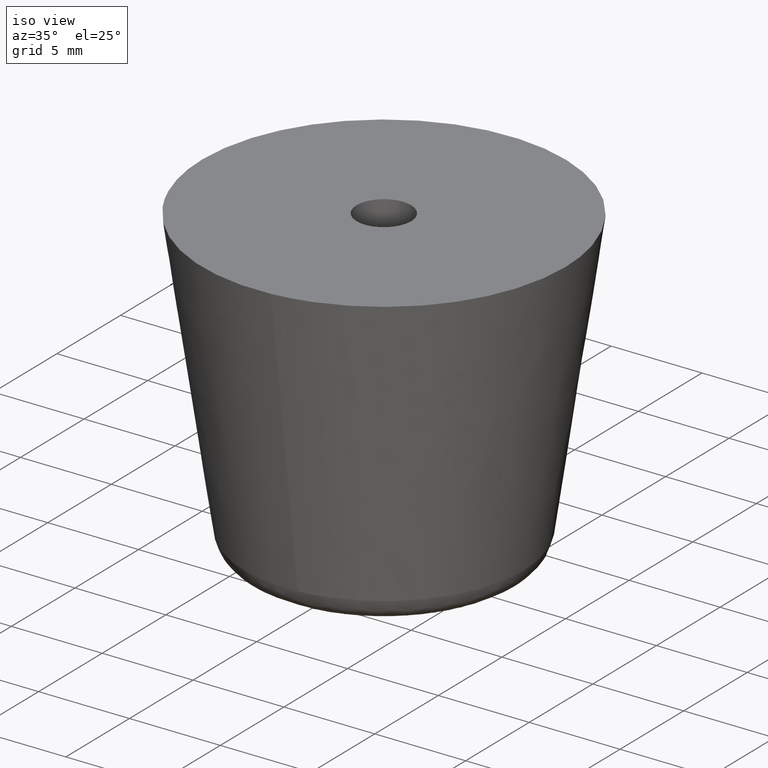
[diagram: clean part render]
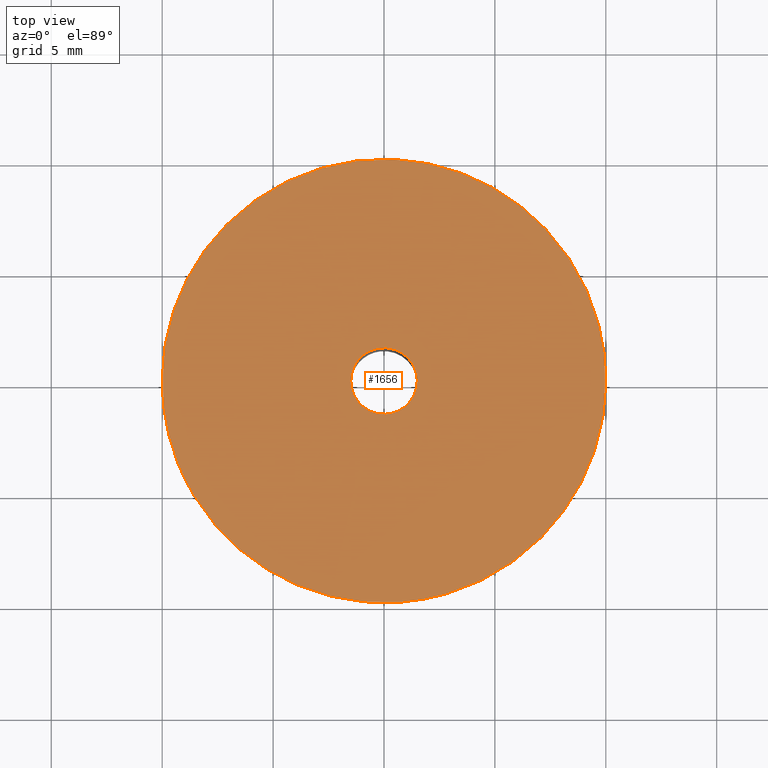
[diagram: tour spotlight — one face highlighted and labeled with its STEP entity id]
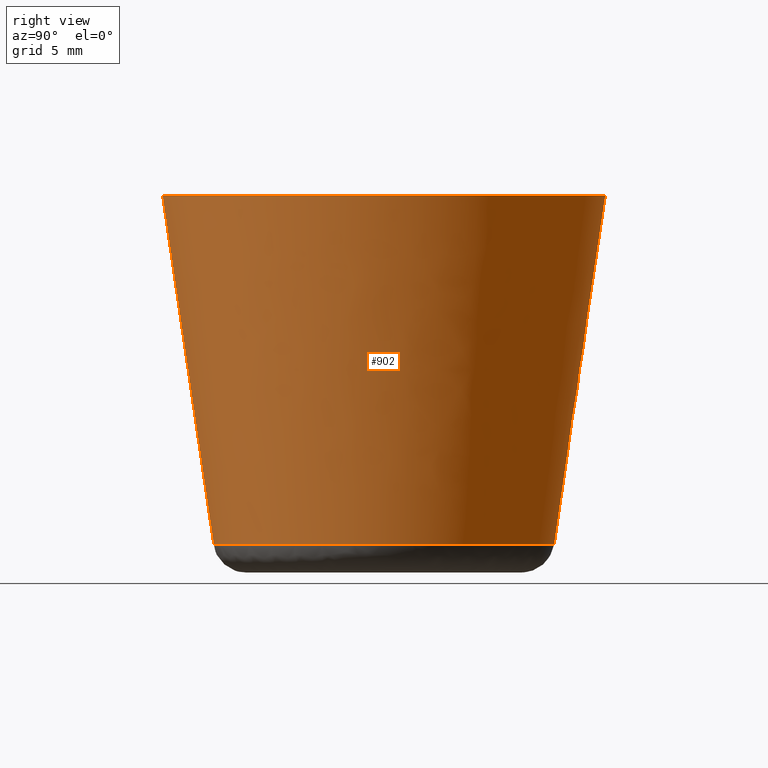
[diagram: tour spotlight — one face highlighted and labeled with its STEP entity id]
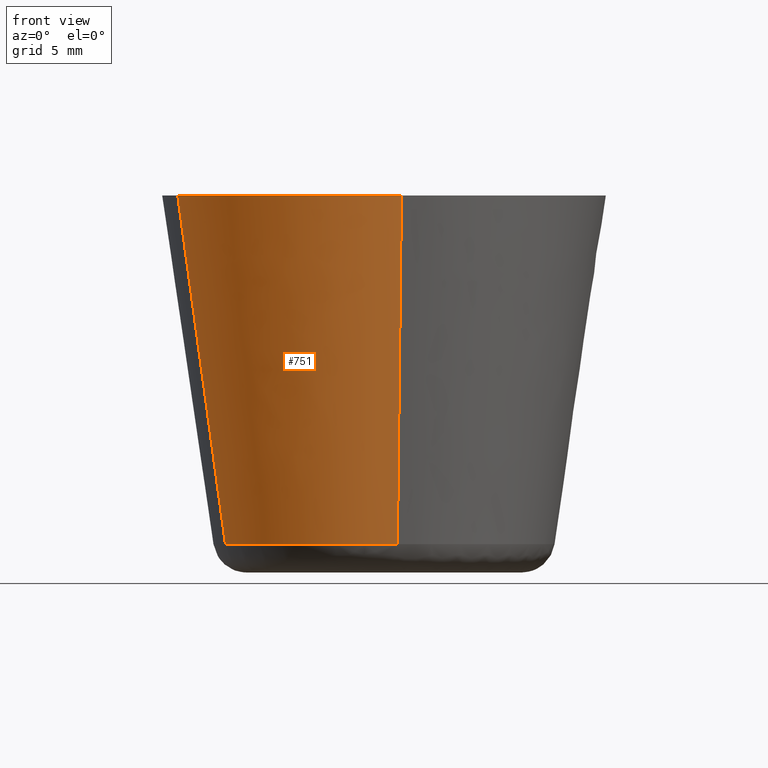
[diagram: tour spotlight — one face highlighted and labeled with its STEP entity id]
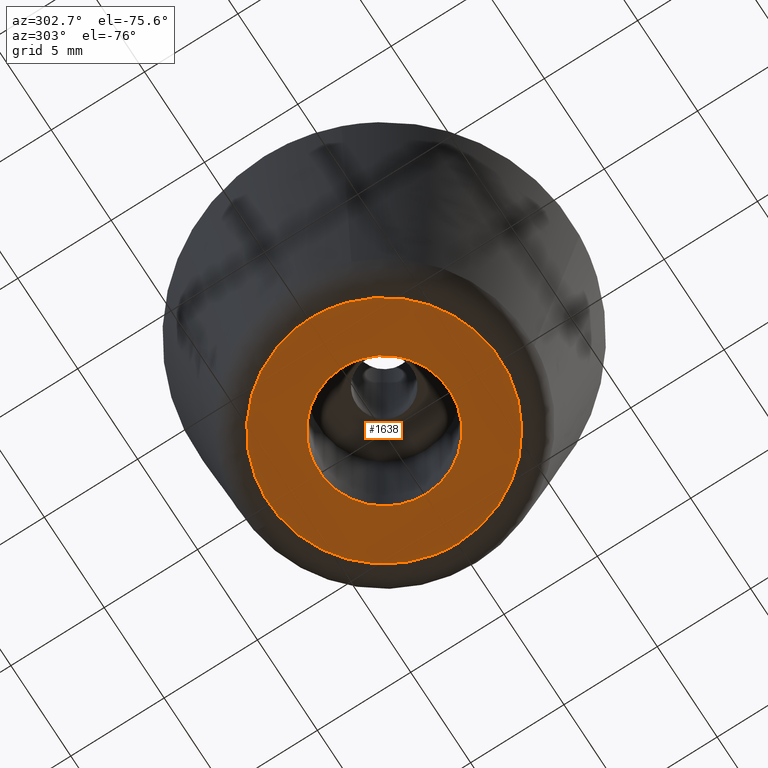
[diagram: tour spotlight — one face highlighted and labeled with its STEP entity id]
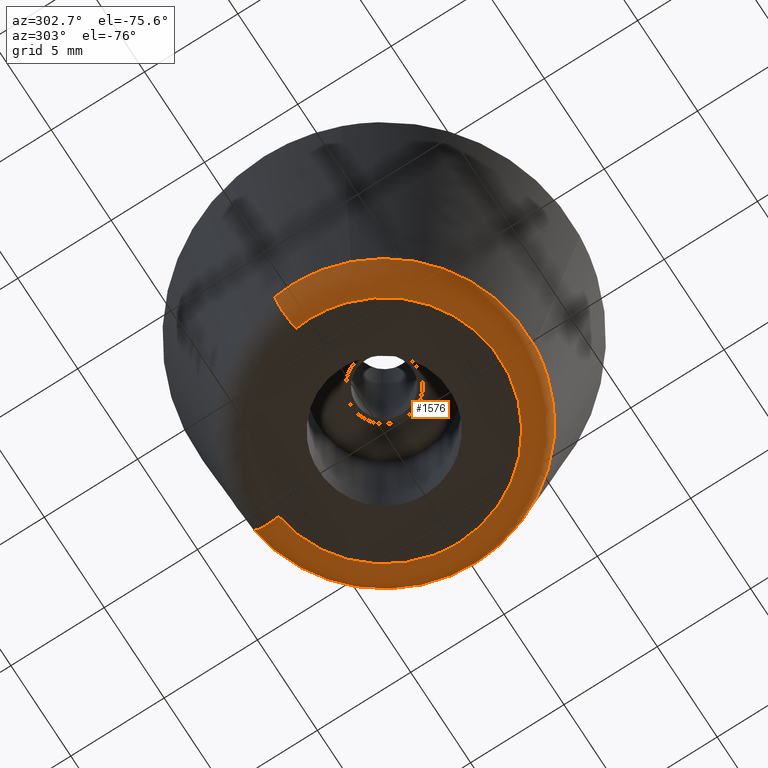
[diagram: tour spotlight — one face highlighted and labeled with its STEP entity id]
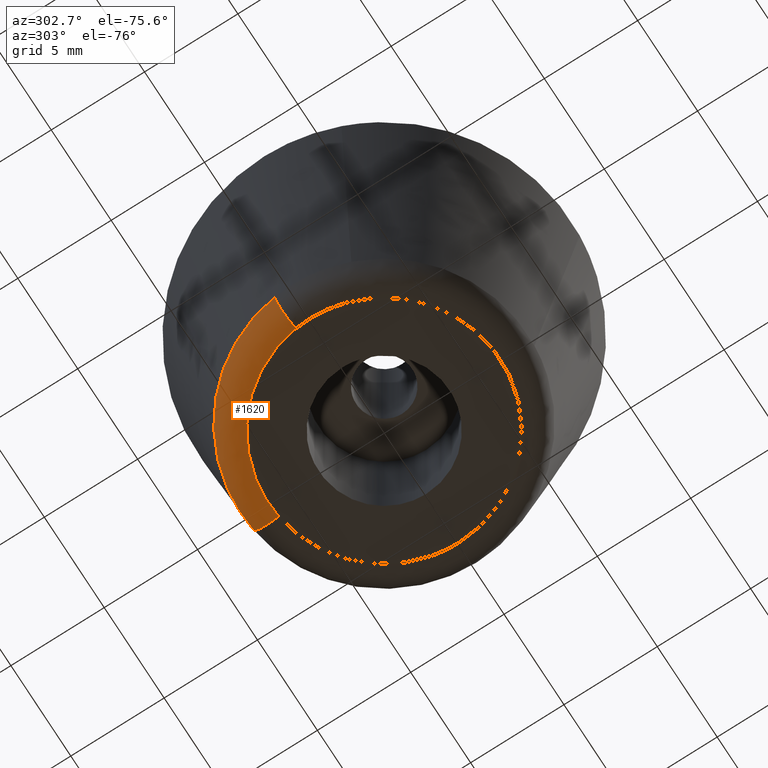
[diagram: tour spotlight — one face highlighted and labeled with its STEP entity id]
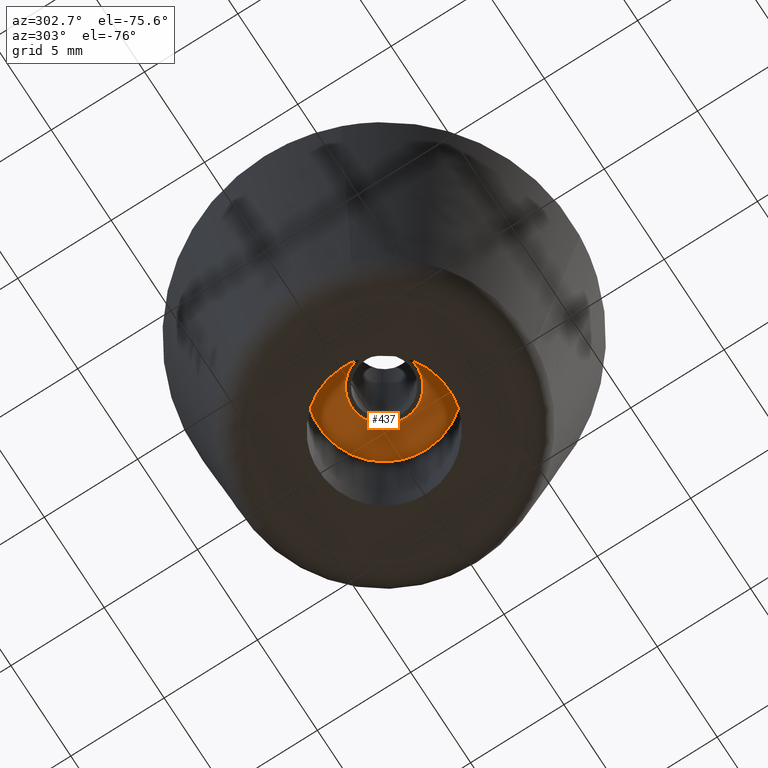
[diagram: tour spotlight — one face highlighted and labeled with its STEP entity id]
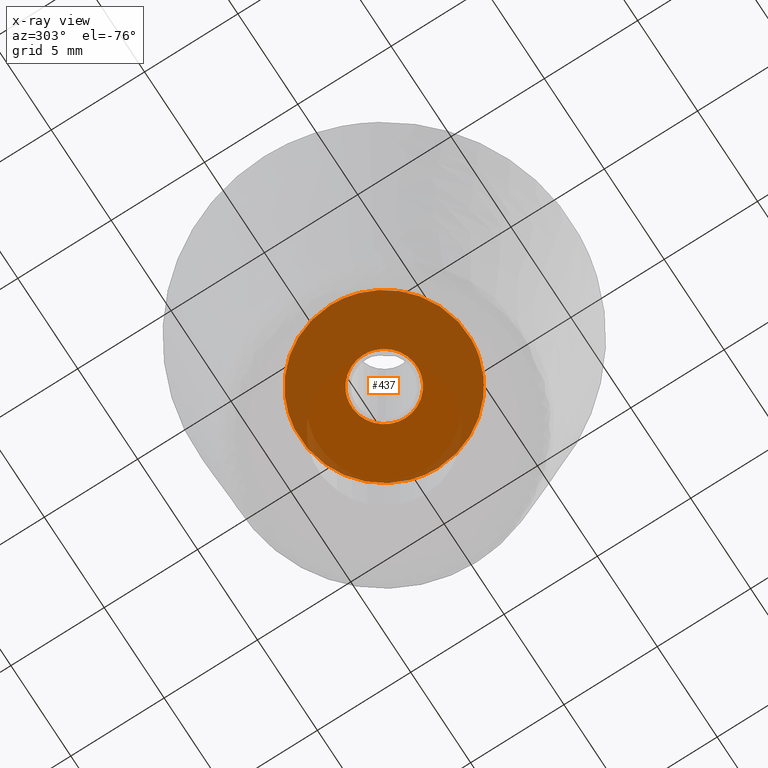
[diagram: x-ray of the same camera — body ghosted, this tour face saturated]
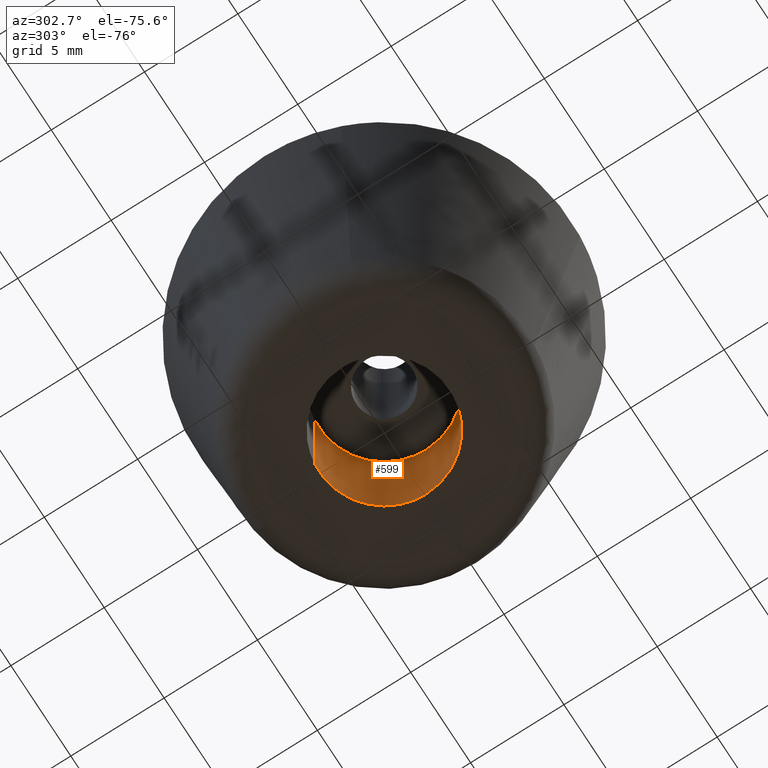
[diagram: tour spotlight — one face highlighted and labeled with its STEP entity id]
A machine part: a face-by-face anatomy tour. The part has 23 B-rep faces; the first image is the clean iso view, then the 8 largest visible faces are spotlighted one at a time (largest first), each with its STEP entity span.

Face 1 — top view, entity #1656. In plain terms, the highlighted face is a freeform B-spline surface patch.
Definition (entity closure, byte-faithful):
#720=CARTESIAN_POINT('',(0.784585198288485,-9.969173459394135,16.999997754944211));
#721=VERTEX_POINT('',#720);
#727=CARTESIAN_POINT('',(-9.298645161767563,-3.679020376914695,16.999997544597910));
#728=VERTEX_POINT('',#727);
#729=CARTESIAN_POINT('',(0.784585198288485,-9.969173459394135,16.999997754944204));
#730=CARTESIAN_POINT('',(0.392898173944178,-9.999999676080371,16.999997749351014));
#731=CARTESIAN_POINT('',(-6.142026E-009,-9.999999681586367,16.999997743450841));
#732=CARTESIAN_POINT('',(-6.797742030729433,-9.999999776848558,16.999997641368875));
#733=CARTESIAN_POINT('',(-9.298645161767565,-3.679020376914696,16.999997544597907));
#741=(BOUNDED_CURVE()B_SPLINE_CURVE(2,(#729,#730,#731,#732,#733),.UNSPECIFIED.,.F.,.U.)B_SPLINE_CURVE_WITH_KNOTS((3,2,3),(0.736331399215814,0.750000000000000,0.937532605536323),.UNSPECIFIED.)CURVE()GEOMETRIC_REPRESENTATION_ITEM()RATIONAL_B_SPLINE_CURVE((0.969723561907205,0.983986238078575,1.0,0.780291886127972,0.890203252671084))REPRESENTATION_ITEM(''));
#742=EDGE_CURVE('',#721,#728,#741,.T.);
#794=CARTESIAN_POINT('',(-10.0,0.0,17.0));
#795=VERTEX_POINT('',#794);
#796=CARTESIAN_POINT('',(-9.298645161767565,-3.679020376914696,16.999997544597907));
#797=CARTESIAN_POINT('',(-9.999999832117995,-1.906361968275884,16.999998772298959));
#798=CARTESIAN_POINT('',(-10.0,0.0,17.0));
#806=(BOUNDED_CURVE()B_SPLINE_CURVE(2,(#796,#797,#798),.UNSPECIFIED.,.F.,.U.)B_SPLINE_CURVE_WITH_KNOTS((3,3),(0.937532605536323,1.0),.UNSPECIFIED.)CURVE()GEOMETRIC_REPRESENTATION_ITEM()RATIONAL_B_SPLINE_CURVE((0.890203252671084,0.926814895058576,1.0))REPRESENTATION_ITEM(''));
#807=EDGE_CURVE('',#728,#795,#806,.T.);
#809=CARTESIAN_POINT('',(10.0,0.0,17.0));
#810=VERTEX_POINT('',#809);
#811=CARTESIAN_POINT('',(-10.0,0.0,17.0));
#812=CARTESIAN_POINT('',(-10.000000000000002,10.000000000000002,17.000000000000004));
#813=CARTESIAN_POINT('',(0.0,10.0,17.0));
#814=CARTESIAN_POINT('',(10.000000000000002,10.000000000000002,17.000000000000004));
#815=CARTESIAN_POINT('',(10.0,0.0,17.0));
#823=(BOUNDED_CURVE()B_SPLINE_CURVE(2,(#811,#812,#813,#814,#815),.UNSPECIFIED.,.F.,.U.)B_SPLINE_CURVE_WITH_KNOTS((3,2,3),(0.0,0.250000000000000,0.500000000000000),.UNSPECIFIED.)CURVE()GEOMETRIC_REPRESENTATION_ITEM()RATIONAL_B_SPLINE_CURVE((1.0,0.707106781186548,1.0,0.707106781186548,1.0))REPRESENTATION_ITEM(''));
#824=EDGE_CURVE('',#795,#810,#823,.T.);
#826=CARTESIAN_POINT('',(10.0,0.0,17.0));
#827=CARTESIAN_POINT('',(9.999999987048186,-9.243910084449851,16.999998877472109));
#828=CARTESIAN_POINT('',(0.784585198288485,-9.969173459394135,16.999997754944204));
#836=(BOUNDED_CURVE()B_SPLINE_CURVE(2,(#826,#827,#828),.UNSPECIFIED.,.F.,.U.)B_SPLINE_CURVE_WITH_KNOTS((3,3),(0.500000000000000,0.736331399215814),.UNSPECIFIED.)CURVE()GEOMETRIC_REPRESENTATION_ITEM()RATIONAL_B_SPLINE_CURVE((1.0,0.723120543107973,0.969723561907205))REPRESENTATION_ITEM(''));
#837=EDGE_CURVE('',#810,#721,#836,.T.);
#925=CARTESIAN_POINT('',(-0.177051352012515,1.489514289542246,17.0));
#926=VERTEX_POINT('',#925);
#927=CARTESIAN_POINT('',(1.500000000000000,0.0,17.0));
#928=VERTEX_POINT('',#927);
#929=CARTESIAN_POINT('',(-0.177051352012515,1.489514289542245,17.000000000000007));
#930=CARTESIAN_POINT('',(-0.088836179505531,1.500000000000000,17.000000000000004));
#931=CARTESIAN_POINT('',(0.0,1.500000000000000,17.0));
#932=CARTESIAN_POINT('',(1.500000000000000,1.500000000000000,17.000000000000004));
#933=CARTESIAN_POINT('',(1.500000000000000,0.0,17.0));
#941=(BOUNDED_CURVE()B_SPLINE_CURVE(2,(#929,#930,#931,#932,#933),.UNSPECIFIED.,.F.,.U.)B_SPLINE_CURVE_WITH_KNOTS((3,2,3),(0.229562473509432,0.250000000000000,0.500000000000000),.UNSPECIFIED.)CURVE()GEOMETRIC_REPRESENTATION_ITEM()RATIONAL_B_SPLINE_CURVE((0.956026754175709,0.976055948326369,1.0,0.707106781186548,1.0))REPRESENTATION_ITEM(''));
#942=EDGE_CURVE('',#926,#928,#941,.T.);
#983=CARTESIAN_POINT('',(0.091572809335385,-1.497202197630776,17.0));
#984=VERTEX_POINT('',#983);
#990=CARTESIAN_POINT('',(1.500000000000000,0.0,17.0));
#991=CARTESIAN_POINT('',(1.500000000000001,-1.411059100296042,17.0));
#992=CARTESIAN_POINT('',(0.091572809335385,-1.497202197630776,16.999999999999996));
#1000=(BOUNDED_CURVE()B_SPLINE_CURVE(2,(#990,#991,#992),.UNSPECIFIED.,.F.,.U.)B_SPLINE_CURVE_WITH_KNOTS((3,3),(0.500000000000000,0.739332962234340),.UNSPECIFIED.)CURVE()GEOMETRIC_REPRESENTATION_ITEM()RATIONAL_B_SPLINE_CURVE((1.0,0.719603993292103,0.976072041656852))REPRESENTATION_ITEM(''));
#1001=EDGE_CURVE('',#928,#984,#1000,.T.);
#1024=CARTESIAN_POINT('',(-1.500000000000000,0.0,17.0));
#1025=VERTEX_POINT('',#1024);
#1026=CARTESIAN_POINT('',(-1.500000000000000,0.0,17.0));
#1027=CARTESIAN_POINT('',(-1.500000000000000,1.332261788877733,16.999999999999989));
#1028=CARTESIAN_POINT('',(-0.177051352012515,1.489514289542246,17.0));
#1036=(BOUNDED_CURVE()B_SPLINE_CURVE(2,(#1026,#1027,#1028),.UNSPECIFIED.,.F.,.U.)B_SPLINE_CURVE_WITH_KNOTS((3,3),(0.0,0.229562473509432),.UNSPECIFIED.)CURVE()GEOMETRIC_REPRESENTATION_ITEM()RATIONAL_B_SPLINE_CURVE((1.0,0.731050832860179,0.956026754175709))REPRESENTATION_ITEM(''));
#1037=EDGE_CURVE('',#1025,#926,#1036,.T.);
#1039=CARTESIAN_POINT('',(0.091572809335385,-1.497202197630776,17.0));
#1040=CARTESIAN_POINT('',(0.045829144981075,-1.500000000000000,17.000000000000007));
#1041=CARTESIAN_POINT('',(0.0,-1.500000000000000,17.0));
#1042=CARTESIAN_POINT('',(-1.500000000000000,-1.500000000000000,17.000000000000004));
#1043=CARTESIAN_POINT('',(-1.500000000000000,0.0,17.0));
#1051=(BOUNDED_CURVE()B_SPLINE_CURVE(2,(#1039,#1040,#1041,#1042,#1043),.UNSPECIFIED.,.F.,.U.)B_SPLINE_CURVE_WITH_KNOTS((3,2,3),(0.739332962234339,0.750000000000000,1.0),.UNSPECIFIED.)CURVE()GEOMETRIC_REPRESENTATION_ITEM()RATIONAL_B_SPLINE_CURVE((0.976072041656851,0.987502787894444,1.0,0.707106781186548,1.0))REPRESENTATION_ITEM(''));
#1052=EDGE_CURVE('',#984,#1025,#1051,.T.);
#1639=CARTESIAN_POINT('',(10.998999961236120,-10.998791751265530,17.0));
#1640=CARTESIAN_POINT('',(-10.999000497677921,-10.998791751265530,17.0));
#1641=CARTESIAN_POINT('',(10.998999961236120,10.998990592360499,17.0));
#1642=CARTESIAN_POINT('',(-10.999000497677921,10.998990592360499,17.0));
#1643=B_SPLINE_SURFACE_WITH_KNOTS('',1,1,((#1639,#1641),(#1640,#1642)),.UNSPECIFIED.,.F.,.F.,.U.,(2,2),(2,2),(0.0,21.998000458914039),(0.0,21.997782343626032),.UNSPECIFIED.);
#1644=ORIENTED_EDGE('',*,*,#807,.F.);
#1645=ORIENTED_EDGE('',*,*,#742,.F.);
#1646=ORIENTED_EDGE('',*,*,#837,.F.);
#1647=ORIENTED_EDGE('',*,*,#824,.F.);
#1648=EDGE_LOOP('',(#1644,#1645,#1646,#1647));
#1649=FACE_OUTER_BOUND('',#1648,.T.);
#1650=ORIENTED_EDGE('',*,*,#1001,.T.);
#1651=ORIENTED_EDGE('',*,*,#1052,.T.);
#1652=ORIENTED_EDGE('',*,*,#1037,.T.);
#1653=ORIENTED_EDGE('',*,*,#942,.T.);
#1654=EDGE_LOOP('',(#1650,#1651,#1652,#1653));
#1655=FACE_BOUND('',#1654,.T.);
#1656=ADVANCED_FACE('',(#1649,#1655),#1643,.F.);

Face 2 — right view, entity #902. In plain terms, the highlighted face is a freeform B-spline surface patch.
Definition (entity closure, byte-faithful):
#701=CARTESIAN_POINT('',(0.603225205780603,-7.664793093291634,1.281756268798136));
#702=VERTEX_POINT('',#701);
#703=CARTESIAN_POINT('',(-7.149258306860041,-2.828610663917456,1.281755744479543));
#704=VERTEX_POINT('',#703);
#720=CARTESIAN_POINT('',(0.784585198288485,-9.969173459394135,16.999997754944211));
#721=VERTEX_POINT('',#720);
#722=CARTESIAN_POINT('',(0.603225205780603,-7.664793093291634,1.281756268798136));
#723=CARTESIAN_POINT('',(0.784585198288485,-9.969173459394135,16.999997754944211));
#724=QUASI_UNIFORM_CURVE('',1,(#722,#723),.UNSPECIFIED.,.F.,.U.);
#725=EDGE_CURVE('',#702,#721,#724,.T.);
#727=CARTESIAN_POINT('',(-9.298645161767563,-3.679020376914695,16.999997544597910));
#728=VERTEX_POINT('',#727);
#744=CARTESIAN_POINT('',(-7.149258306860041,-2.828610663917456,1.281755744479543));
#745=CARTESIAN_POINT('',(-9.298645161767563,-3.679020376914695,16.999997544597910));
#746=QUASI_UNIFORM_CURVE('',1,(#744,#745),.UNSPECIFIED.,.F.,.U.);
#747=EDGE_CURVE('',#704,#728,#746,.T.);
#752=CARTESIAN_POINT('',(0.598698307680227,-7.607183272586216,0.888801908489883));
#753=CARTESIAN_POINT('',(8.205881580266443,-7.008484964905989,0.888801908489883));
#754=CARTESIAN_POINT('',(7.607183272586216,0.598698307680227,0.888801908489883));
#755=CARTESIAN_POINT('',(7.008484964905989,8.205881580266443,0.888801908489883));
#756=CARTESIAN_POINT('',(-0.598698307680227,7.607183272586216,0.888801908489883));
#757=CARTESIAN_POINT('',(-8.205881580266443,7.008484964905989,0.888801908489883));
#758=CARTESIAN_POINT('',(-7.607183272586216,-0.598698307680227,0.888801908489883));
#759=CARTESIAN_POINT('',(-7.517246151351230,-1.741457783474113,0.888801908489883));
#760=CARTESIAN_POINT('',(-7.095522186780759,-2.807354965663707,0.888801908489883));
#761=CARTESIAN_POINT('',(0.789238273518411,-10.028223088949900,17.402779952287759));
#762=CARTESIAN_POINT('',(10.817461362468315,-9.238984815431493,17.402779952287762));
#763=CARTESIAN_POINT('',(10.028223088949900,0.789238273518411,17.402779952287759));
#764=CARTESIAN_POINT('',(9.238984815431493,10.817461362468315,17.402779952287762));
#765=CARTESIAN_POINT('',(-0.789238273518411,10.028223088949900,17.402779952287759));
#766=CARTESIAN_POINT('',(-10.817461362468315,9.238984815431493,17.402779952287762));
#767=CARTESIAN_POINT('',(-10.028223088949900,-0.789238273518411,17.402779952287759));
#768=CARTESIAN_POINT('',(-9.909662843533894,-2.295689025345313,17.402779952287755));
#769=CARTESIAN_POINT('',(-9.353722248029969,-3.700815515645628,17.402779952287755));
#777=(BOUNDED_SURFACE()B_SPLINE_SURFACE(2,1,((#752,#761),(#753,#762),(#754,#763),(#755,#764),(#756,#765),(#757,#766),(#758,#767),(#759,#768),(#760,#769)),.UNSPECIFIED.,.F.,.F.,.U.)B_SPLINE_SURFACE_WITH_KNOTS((3,2,2,2,3),(2,2),(0.0,16.666681857727760,33.333363715455519,50.000045573183279,53.333381944728828),(0.0,16.691590999723129),.UNSPECIFIED.)GEOMETRIC_REPRESENTATION_ITEM()RATIONAL_B_SPLINE_SURFACE(((1.0,1.0),(0.707106781186548,0.707106781186548),(1.0,1.0),(0.707106781186548,0.707106781186548),(1.0,1.0),(0.707106781186548,0.707106781186548),(1.0,1.0),(0.941421356237310,0.941421356237310),(0.906274169979695,0.906274169979695)))REPRESENTATION_ITEM('')SURFACE());
#778=CARTESIAN_POINT('',(-7.688494000000000,0.0,1.281758999999894));
#779=VERTEX_POINT('',#778);
#780=CARTESIAN_POINT('',(-7.149258306860040,-2.828610663917456,1.281755744479543));
#781=CARTESIAN_POINT('',(-7.688493777411583,-1.465704175611696,1.281757372239718));
#782=CARTESIAN_POINT('',(-7.688494000000000,0.0,1.281758999999894));
#790=(BOUNDED_CURVE()B_SPLINE_CURVE(2,(#780,#781,#782),.UNSPECIFIED.,.F.,.U.)B_SPLINE_CURVE_WITH_KNOTS((3,3),(0.937532646730406,1.0),.UNSPECIFIED.)CURVE()GEOMETRIC_REPRESENTATION_ITEM()RATIONAL_B_SPLINE_CURVE((0.890203300958148,0.926814943320447,1.0))REPRESENTATION_ITEM(''));
#791=EDGE_CURVE('',#704,#779,#790,.T.);
#792=ORIENTED_EDGE('',*,*,#791,.F.);
#793=ORIENTED_EDGE('',*,*,#747,.T.);
#794=CARTESIAN_POINT('',(-10.0,0.0,17.0));
#795=VERTEX_POINT('',#794);
#796=CARTESIAN_POINT('',(-9.298645161767565,-3.679020376914696,16.999997544597907));
#797=CARTESIAN_POINT('',(-9.999999832117995,-1.906361968275884,16.999998772298959));
#798=CARTESIAN_POINT('',(-10.0,0.0,17.0));
#806=(BOUNDED_CURVE()B_SPLINE_CURVE(2,(#796,#797,#798),.UNSPECIFIED.,.F.,.U.)B_SPLINE_CURVE_WITH_KNOTS((3,3),(0.937532605536323,1.0),.UNSPECIFIED.)CURVE()GEOMETRIC_REPRESENTATION_ITEM()RATIONAL_B_SPLINE_CURVE((0.890203252671084,0.926814895058576,1.0))REPRESENTATION_ITEM(''));
#807=EDGE_CURVE('',#728,#795,#806,.T.);
#808=ORIENTED_EDGE('',*,*,#807,.T.);
#809=CARTESIAN_POINT('',(10.0,0.0,17.0));
#810=VERTEX_POINT('',#809);
#811=CARTESIAN_POINT('',(-10.0,0.0,17.0));
#812=CARTESIAN_POINT('',(-10.000000000000002,10.000000000000002,17.000000000000004));
#813=CARTESIAN_POINT('',(0.0,10.0,17.0));
#814=CARTESIAN_POINT('',(10.000000000000002,10.000000000000002,17.000000000000004));
#815=CARTESIAN_POINT('',(10.0,0.0,17.0));
#823=(BOUNDED_CURVE()B_SPLINE_CURVE(2,(#811,#812,#813,#814,#815),.UNSPECIFIED.,.F.,.U.)B_SPLINE_CURVE_WITH_KNOTS((3,2,3),(0.0,0.250000000000000,0.500000000000000),.UNSPECIFIED.)CURVE()GEOMETRIC_REPRESENTATION_ITEM()RATIONAL_B_SPLINE_CURVE((1.0,0.707106781186548,1.0,0.707106781186548,1.0))REPRESENTATION_ITEM(''));
#824=EDGE_CURVE('',#795,#810,#823,.T.);
#825=ORIENTED_EDGE('',*,*,#824,.T.);
#826=CARTESIAN_POINT('',(10.0,0.0,17.0));
#827=CARTESIAN_POINT('',(9.999999987048186,-9.243910084449851,16.999998877472109));
#828=CARTESIAN_POINT('',(0.784585198288485,-9.969173459394135,16.999997754944204));
#836=(BOUNDED_CURVE()B_SPLINE_CURVE(2,(#826,#827,#828),.UNSPECIFIED.,.F.,.U.)B_SPLINE_CURVE_WITH_KNOTS((3,3),(0.500000000000000,0.736331399215814),.UNSPECIFIED.)CURVE()GEOMETRIC_REPRESENTATION_ITEM()RATIONAL_B_SPLINE_CURVE((1.0,0.723120543107973,0.969723561907205))REPRESENTATION_ITEM(''));
#837=EDGE_CURVE('',#810,#721,#836,.T.);
#838=ORIENTED_EDGE('',*,*,#837,.T.);
#839=ORIENTED_EDGE('',*,*,#725,.F.);
#840=CARTESIAN_POINT('',(7.688494000000000,0.0,1.281758999999894));
#841=VERTEX_POINT('',#840);
#842=CARTESIAN_POINT('',(7.688494000000000,0.0,1.281758999999894));
#843=CARTESIAN_POINT('',(7.688493984243615,-7.107177105379839,1.281757634399015));
#844=CARTESIAN_POINT('',(0.603225205780603,-7.664793093291634,1.281756268798136));
#852=(BOUNDED_CURVE()B_SPLINE_CURVE(2,(#842,#843,#844),.UNSPECIFIED.,.F.,.U.)B_SPLINE_CURVE_WITH_KNOTS((3,3),(0.500000000000000,0.736331458295146),.UNSPECIFIED.)CURVE()GEOMETRIC_REPRESENTATION_ITEM()RATIONAL_B_SPLINE_CURVE((1.0,0.723120473892230,0.969723685201406))REPRESENTATION_ITEM(''));
#853=EDGE_CURVE('',#841,#702,#852,.T.);
#854=ORIENTED_EDGE('',*,*,#853,.F.);
#855=CARTESIAN_POINT('',(0.963618329727308,7.627868351062119,1.281758194171509));
#856=VERTEX_POINT('',#855);
#857=CARTESIAN_POINT('',(0.963618329727308,7.627868351062119,1.281758194171509));
#858=CARTESIAN_POINT('',(7.688494000000000,6.778324140017563,1.281758999999894));
#859=CARTESIAN_POINT('',(7.688494000000000,0.0,1.281758999999894));
#867=(BOUNDED_CURVE()B_SPLINE_CURVE(2,(#857,#858,#859),.UNSPECIFIED.,.F.,.U.)B_SPLINE_CURVE_WITH_KNOTS((3,3),(0.271678623052789,0.500000000000000),.UNSPECIFIED.)CURVE()GEOMETRIC_REPRESENTATION_ITEM()RATIONAL_B_SPLINE_CURVE((0.953608590906849,0.732504867928047,1.0))REPRESENTATION_ITEM(''));
#868=EDGE_CURVE('',#856,#841,#867,.T.);
#869=ORIENTED_EDGE('',*,*,#868,.F.);
#870=CARTESIAN_POINT('',(-7.627868389610221,0.963617749230934,1.281757959502325));
#871=VERTEX_POINT('',#870);
#872=CARTESIAN_POINT('',(-7.627868389610221,0.963617749230934,1.281757959502326));
#873=CARTESIAN_POINT('',(-6.778324503051046,7.688493861577276,1.281758062946757));
#874=CARTESIAN_POINT('',(-0.000000011362357,7.688493749268943,1.281758178540461));
#875=CARTESIAN_POINT('',(0.483716260592138,7.688493741254371,1.281758186789485));
#876=CARTESIAN_POINT('',(0.963618329727308,7.627868351062119,1.281758194171509));
#884=(BOUNDED_CURVE()B_SPLINE_CURVE(2,(#872,#873,#874,#875,#876),.UNSPECIFIED.,.F.,.U.)B_SPLINE_CURVE_WITH_KNOTS((3,2,3),(0.021678610319418,0.250000000000000,0.271678623052789),.UNSPECIFIED.)CURVE()GEOMETRIC_REPRESENTATION_ITEM()RATIONAL_B_SPLINE_CURVE((0.953608615568543,0.732504853009975,1.0,0.974601913258500,0.953608590906849))REPRESENTATION_ITEM(''));
#885=EDGE_CURVE('',#871,#856,#884,.T.);
#886=ORIENTED_EDGE('',*,*,#885,.F.);
#887=CARTESIAN_POINT('',(-7.688494000000000,0.0,1.281758999999894));
#888=CARTESIAN_POINT('',(-7.688493849921684,0.483715973202625,1.281758479751110));
#889=CARTESIAN_POINT('',(-7.627868389610221,0.963617749230934,1.281757959502325));
#897=(BOUNDED_CURVE()B_SPLINE_CURVE(2,(#887,#888,#889),.UNSPECIFIED.,.F.,.U.)B_SPLINE_CURVE_WITH_KNOTS((3,3),(0.0,0.021678610319418),.UNSPECIFIED.)CURVE()GEOMETRIC_REPRESENTATION_ITEM()RATIONAL_B_SPLINE_CURVE((1.0,0.974601928176573,0.953608615568543))REPRESENTATION_ITEM(''));
#898=EDGE_CURVE('',#779,#871,#897,.T.);
#899=ORIENTED_EDGE('',*,*,#898,.F.);
#900=EDGE_LOOP('',(#792,#793,#808,#825,#838,#839,#854,#869,#886,#899));
#901=FACE_OUTER_BOUND('',#900,.T.);
#902=ADVANCED_FACE('',(#901),#777,.T.);

Face 3 — front view, entity #751. In plain terms, the highlighted face is a freeform B-spline surface patch.
Definition (entity closure, byte-faithful):
#687=CARTESIAN_POINT('',(-7.095522186780759,-2.807354965663707,0.888801908489883));
#688=CARTESIAN_POINT('',(-5.021459216547113,-8.049499262366131,0.888801908489883));
#689=CARTESIAN_POINT('',(0.598698307680227,-7.607183272586216,0.888801908489883));
#690=CARTESIAN_POINT('',(-9.353722248029969,-3.700815515645628,17.402779952287755));
#691=CARTESIAN_POINT('',(-6.619574085596918,-10.611309267155610,17.402779952287752));
#692=CARTESIAN_POINT('',(0.789238273518411,-10.028223088949900,17.402779952287759));
#700=(BOUNDED_SURFACE()B_SPLINE_SURFACE(2,1,((#687,#690),(#688,#691),(#689,#692)),.UNSPECIFIED.,.F.,.F.,.U.)B_SPLINE_SURFACE_WITH_KNOTS((3,3),(2,2),(0.0,13.242463584079630),(0.0,16.691590999723129),.UNSPECIFIED.)GEOMETRIC_REPRESENTATION_ITEM()RATIONAL_B_SPLINE_SURFACE(((0.906274169979695,0.906274169979695),(0.765685424949238,0.765685424949238),(1.0,1.0)))REPRESENTATION_ITEM('')SURFACE());
#701=CARTESIAN_POINT('',(0.603225205780603,-7.664793093291634,1.281756268798136));
#702=VERTEX_POINT('',#701);
#703=CARTESIAN_POINT('',(-7.149258306860041,-2.828610663917456,1.281755744479543));
#704=VERTEX_POINT('',#703);
#705=CARTESIAN_POINT('',(0.603225205780603,-7.664793093291634,1.281756268798136));
#706=CARTESIAN_POINT('',(0.302078192065635,-7.688493605551177,1.281756254856334));
#707=CARTESIAN_POINT('',(-5.466461E-009,-7.688493611842091,1.281756240149378));
#708=CARTESIAN_POINT('',(-5.226441257352695,-7.688493720685100,1.281755985695261));
#709=CARTESIAN_POINT('',(-7.149258306860040,-2.828610663917456,1.281755744479543));
#717=(BOUNDED_CURVE()B_SPLINE_CURVE(2,(#705,#706,#707,#708,#709),.UNSPECIFIED.,.F.,.U.)B_SPLINE_CURVE_WITH_KNOTS((3,2,3),(0.736331458295146,0.750000000000000,0.937532646730406),.UNSPECIFIED.)CURVE()GEOMETRIC_REPRESENTATION_ITEM()RATIONAL_B_SPLINE_CURVE((0.969723685201406,0.983986307294318,1.0,0.780291837866101,0.890203300958148))REPRESENTATION_ITEM(''));
#718=EDGE_CURVE('',#702,#704,#717,.T.);
#719=ORIENTED_EDGE('',*,*,#718,.F.);
#720=CARTESIAN_POINT('',(0.784585198288485,-9.969173459394135,16.999997754944211));
#721=VERTEX_POINT('',#720);
#722=CARTESIAN_POINT('',(0.603225205780603,-7.664793093291634,1.281756268798136));
#723=CARTESIAN_POINT('',(0.784585198288485,-9.969173459394135,16.999997754944211));
#724=QUASI_UNIFORM_CURVE('',1,(#722,#723),.UNSPECIFIED.,.F.,.U.);
#725=EDGE_CURVE('',#702,#721,#724,.T.);
#726=ORIENTED_EDGE('',*,*,#725,.T.);
#727=CARTESIAN_POINT('',(-9.298645161767563,-3.679020376914695,16.999997544597910));
#728=VERTEX_POINT('',#727);
#729=CARTESIAN_POINT('',(0.784585198288485,-9.969173459394135,16.999997754944204));
#730=CARTESIAN_POINT('',(0.392898173944178,-9.999999676080371,16.999997749351014));
#731=CARTESIAN_POINT('',(-6.142026E-009,-9.999999681586367,16.999997743450841));
#732=CARTESIAN_POINT('',(-6.797742030729433,-9.999999776848558,16.999997641368875));
#733=CARTESIAN_POINT('',(-9.298645161767565,-3.679020376914696,16.999997544597907));
#741=(BOUNDED_CURVE()B_SPLINE_CURVE(2,(#729,#730,#731,#732,#733),.UNSPECIFIED.,.F.,.U.)B_SPLINE_CURVE_WITH_KNOTS((3,2,3),(0.736331399215814,0.750000000000000,0.937532605536323),.UNSPECIFIED.)CURVE()GEOMETRIC_REPRESENTATION_ITEM()RATIONAL_B_SPLINE_CURVE((0.969723561907205,0.983986238078575,1.0,0.780291886127972,0.890203252671084))REPRESENTATION_ITEM(''));
#742=EDGE_CURVE('',#721,#728,#741,.T.);
#743=ORIENTED_EDGE('',*,*,#742,.T.);
#744=CARTESIAN_POINT('',(-7.149258306860041,-2.828610663917456,1.281755744479543));
#745=CARTESIAN_POINT('',(-9.298645161767563,-3.679020376914695,16.999997544597910));
#746=QUASI_UNIFORM_CURVE('',1,(#744,#745),.UNSPECIFIED.,.F.,.U.);
#747=EDGE_CURVE('',#704,#728,#746,.T.);
#748=ORIENTED_EDGE('',*,*,#747,.F.);
#749=EDGE_LOOP('',(#719,#726,#743,#748));
#750=FACE_OUTER_BOUND('',#749,.T.);
#751=ADVANCED_FACE('',(#750),#700,.T.);

Face 4 — auxiliary view, entity #1638. In plain terms, the highlighted face is a freeform B-spline surface patch.
Definition (entity closure, byte-faithful):
#519=CARTESIAN_POINT('',(-0.413113908999133,3.475534045029052,-2.227531E-014));
#520=VERTEX_POINT('',#519);
#521=CARTESIAN_POINT('',(3.500000000000000,0.0,0.0));
#522=VERTEX_POINT('',#521);
#523=CARTESIAN_POINT('',(-0.413113908999134,3.475534045029051,-2.227531E-014));
#524=CARTESIAN_POINT('',(-0.207281431380641,3.500000000000001,0.0));
#525=CARTESIAN_POINT('',(0.0,3.500000000000000,0.0));
#526=CARTESIAN_POINT('',(3.500000000000000,3.500000000000000,0.0));
#527=CARTESIAN_POINT('',(3.500000000000000,0.0,0.0));
#535=(BOUNDED_CURVE()B_SPLINE_CURVE(2,(#523,#524,#525,#526,#527),.UNSPECIFIED.,.F.,.U.)B_SPLINE_CURVE_WITH_KNOTS((3,2,3),(0.229562761010492,0.250000000000000,0.500000000000000),.UNSPECIFIED.)CURVE()GEOMETRIC_REPRESENTATION_ITEM()RATIONAL_B_SPLINE_CURVE((0.956027317690327,0.976056285154812,1.0,0.707106781186547,1.0))REPRESENTATION_ITEM(''));
#536=EDGE_CURVE('',#520,#522,#535,.T.);
#538=CARTESIAN_POINT('',(0.213669888386887,-3.493471794475624,-3.469447E-016));
#539=VERTEX_POINT('',#538);
#540=CARTESIAN_POINT('',(3.500000000000000,0.0,0.0));
#541=CARTESIAN_POINT('',(3.500000000000000,-3.292471234141808,0.0));
#542=CARTESIAN_POINT('',(0.213669888386887,-3.493471794475624,-3.469447E-016));
#550=(BOUNDED_CURVE()B_SPLINE_CURVE(2,(#540,#541,#542),.UNSPECIFIED.,.F.,.U.)B_SPLINE_CURVE_WITH_KNOTS((3,3),(0.500000000000000,0.739332962240497),.UNSPECIFIED.)CURVE()GEOMETRIC_REPRESENTATION_ITEM()RATIONAL_B_SPLINE_CURVE((1.0,0.719603993284889,0.976072041670049))REPRESENTATION_ITEM(''));
#551=EDGE_CURVE('',#522,#539,#550,.T.);
#622=CARTESIAN_POINT('',(-3.500000000000000,0.0,0.0));
#623=VERTEX_POINT('',#622);
#624=CARTESIAN_POINT('',(-3.500000000000000,0.0,0.0));
#625=CARTESIAN_POINT('',(-3.499999999999999,3.108616166179720,0.0));
#626=CARTESIAN_POINT('',(-0.413113908999134,3.475534045029051,-2.227531E-014));
#634=(BOUNDED_CURVE()B_SPLINE_CURVE(2,(#624,#625,#626),.UNSPECIFIED.,.F.,.U.)B_SPLINE_CURVE_WITH_KNOTS((3,3),(0.0,0.229562761010492),.UNSPECIFIED.)CURVE()GEOMETRIC_REPRESENTATION_ITEM()RATIONAL_B_SPLINE_CURVE((1.0,0.731050496031735,0.956027317690327))REPRESENTATION_ITEM(''));
#635=EDGE_CURVE('',#623,#520,#634,.T.);
#669=CARTESIAN_POINT('',(0.213669888386888,-3.493471794475624,-3.469447E-016));
#670=CARTESIAN_POINT('',(0.106934671559991,-3.500000000000000,0.0));
#671=CARTESIAN_POINT('',(0.0,-3.500000000000000,0.0));
#672=CARTESIAN_POINT('',(-3.500000000000000,-3.500000000000000,0.0));
#673=CARTESIAN_POINT('',(-3.500000000000000,0.0,0.0));
#681=(BOUNDED_CURVE()B_SPLINE_CURVE(2,(#669,#670,#671,#672,#673),.UNSPECIFIED.,.F.,.U.)B_SPLINE_CURVE_WITH_KNOTS((3,2,3),(0.739332962240498,0.750000000000000,1.0),.UNSPECIFIED.)CURVE()GEOMETRIC_REPRESENTATION_ITEM()RATIONAL_B_SPLINE_CURVE((0.976072041670050,0.987502787901659,1.0,0.707106781186547,1.0))REPRESENTATION_ITEM(''));
#682=EDGE_CURVE('',#539,#623,#681,.T.);
#1494=CARTESIAN_POINT('',(0.777624407717761,6.155531019363858,2.481264E-016));
#1495=VERTEX_POINT('',#1494);
#1496=CARTESIAN_POINT('',(6.204455000000000,0.0,0.0));
#1497=VERTEX_POINT('',#1496);
#1498=CARTESIAN_POINT('',(0.777624407717761,6.155531019363859,2.481264E-016));
#1499=CARTESIAN_POINT('',(6.204454999999999,5.469962883417651,0.0));
#1500=CARTESIAN_POINT('',(6.204455000000000,0.0,0.0));
#1508=(BOUNDED_CURVE()B_SPLINE_CURVE(2,(#1498,#1499,#1500),.UNSPECIFIED.,.F.,.U.)B_SPLINE_CURVE_WITH_KNOTS((3,3),(0.271678743520383,0.500000000000000),.UNSPECIFIED.)CURVE()GEOMETRIC_REPRESENTATION_ITEM()RATIONAL_B_SPLINE_CURVE((0.953608357588196,0.732505009064613,1.0))REPRESENTATION_ITEM(''));
#1509=EDGE_CURVE('',#1495,#1497,#1508,.T.);
#1529=CARTESIAN_POINT('',(-6.155531019403298,0.777624407729386,2.791422E-016));
#1530=VERTEX_POINT('',#1529);
#1544=CARTESIAN_POINT('',(-6.204455000000000,0.0,0.0));
#1545=VERTEX_POINT('',#1544);
#1546=CARTESIAN_POINT('',(-6.204455000000000,0.0,0.0));
#1547=CARTESIAN_POINT('',(-6.204455000000000,0.390351221857504,0.0));
#1548=CARTESIAN_POINT('',(-6.155531019403298,0.777624407729386,2.791422E-016));
#1556=(BOUNDED_CURVE()B_SPLINE_CURVE(2,(#1546,#1547,#1548),.UNSPECIFIED.,.F.,.U.)B_SPLINE_CURVE_WITH_KNOTS((3,3),(0.0,0.021678743520741),.UNSPECIFIED.)CURVE()GEOMETRIC_REPRESENTATION_ITEM()RATIONAL_B_SPLINE_CURVE((1.0,0.974601772121515,0.953608357587502))REPRESENTATION_ITEM(''));
#1557=EDGE_CURVE('',#1545,#1530,#1556,.T.);
#1559=CARTESIAN_POINT('',(6.204455000000000,0.0,0.0));
#1560=CARTESIAN_POINT('',(6.204455000000000,-6.204455000000000,0.0));
#1561=CARTESIAN_POINT('',(0.0,-6.204455000000000,0.0));
#1562=CARTESIAN_POINT('',(-6.204455000000000,-6.204455000000000,0.0));
#1563=CARTESIAN_POINT('',(-6.204455000000000,0.0,0.0));
#1571=(BOUNDED_CURVE()B_SPLINE_CURVE(2,(#1559,#1560,#1561,#1562,#1563),.UNSPECIFIED.,.F.,.U.)B_SPLINE_CURVE_WITH_KNOTS((3,2,3),(0.500000000000000,0.750000000000000,1.0),.UNSPECIFIED.)CURVE()GEOMETRIC_REPRESENTATION_ITEM()RATIONAL_B_SPLINE_CURVE((1.0,0.707106781186548,1.0,0.707106781186548,1.0))REPRESENTATION_ITEM(''));
#1572=EDGE_CURVE('',#1497,#1545,#1571,.T.);
#1600=CARTESIAN_POINT('',(-6.155531019403298,0.777624407729385,2.791422E-016));
#1601=CARTESIAN_POINT('',(-5.469962883405940,6.204455000000002,0.0));
#1602=CARTESIAN_POINT('',(0.0,6.204455000000000,0.0));
#1603=CARTESIAN_POINT('',(0.390351221850890,6.204455000000000,0.0));
#1604=CARTESIAN_POINT('',(0.777624407717761,6.155531019363858,2.481264E-016));
#1612=(BOUNDED_CURVE()B_SPLINE_CURVE(2,(#1600,#1601,#1602,#1603,#1604),.UNSPECIFIED.,.F.,.U.)B_SPLINE_CURVE_WITH_KNOTS((3,2,3),(0.021678743520741,0.250000000000000,0.271678743520384),.UNSPECIFIED.)CURVE()GEOMETRIC_REPRESENTATION_ITEM()RATIONAL_B_SPLINE_CURVE((0.953608357587502,0.732505009065032,1.0,0.974601772121934,0.953608357588196))REPRESENTATION_ITEM(''));
#1613=EDGE_CURVE('',#1530,#1495,#1612,.T.);
#1621=CARTESIAN_POINT('',(-6.824279913963156,-6.824211937540360,0.0));
#1622=CARTESIAN_POINT('',(6.824280357740358,-6.824211937540360,0.0));
#1623=CARTESIAN_POINT('',(-6.824279913963156,6.822851491168995,0.0));
#1624=CARTESIAN_POINT('',(6.824280357740358,6.822851491168995,0.0));
#1625=B_SPLINE_SURFACE_WITH_KNOTS('',1,1,((#1621,#1623),(#1622,#1624)),.UNSPECIFIED.,.F.,.F.,.U.,(2,2),(2,2),(0.0,13.648560271703509),(0.0,13.647063428709361),.UNSPECIFIED.);
#1626=ORIENTED_EDGE('',*,*,#1557,.T.);
#1627=ORIENTED_EDGE('',*,*,#1613,.T.);
#1628=ORIENTED_EDGE('',*,*,#1509,.T.);
#1629=ORIENTED_EDGE('',*,*,#1572,.T.);
#1630=EDGE_LOOP('',(#1626,#1627,#1628,#1629));
#1631=FACE_OUTER_BOUND('',#1630,.T.);
#1632=ORIENTED_EDGE('',*,*,#551,.F.);
#1633=ORIENTED_EDGE('',*,*,#536,.F.);
#1634=ORIENTED_EDGE('',*,*,#635,.F.);
#1635=ORIENTED_EDGE('',*,*,#682,.F.);
#1636=EDGE_LOOP('',(#1632,#1633,#1634,#1635));
#1637=FACE_BOUND('',#1636,.T.);
#1638=ADVANCED_FACE('',(#1631,#1637),#1625,.F.);

Face 5 — auxiliary view, entity #1576. In plain terms, the highlighted face is a freeform B-spline surface patch.
Definition (entity closure, byte-faithful):
#701=CARTESIAN_POINT('',(0.603225205780603,-7.664793093291634,1.281756268798136));
#702=VERTEX_POINT('',#701);
#703=CARTESIAN_POINT('',(-7.149258306860041,-2.828610663917456,1.281755744479543));
#704=VERTEX_POINT('',#703);
#705=CARTESIAN_POINT('',(0.603225205780603,-7.664793093291634,1.281756268798136));
#706=CARTESIAN_POINT('',(0.302078192065635,-7.688493605551177,1.281756254856334));
#707=CARTESIAN_POINT('',(-5.466461E-009,-7.688493611842091,1.281756240149378));
#708=CARTESIAN_POINT('',(-5.226441257352695,-7.688493720685100,1.281755985695261));
#709=CARTESIAN_POINT('',(-7.149258306860040,-2.828610663917456,1.281755744479543));
#717=(BOUNDED_CURVE()B_SPLINE_CURVE(2,(#705,#706,#707,#708,#709),.UNSPECIFIED.,.F.,.U.)B_SPLINE_CURVE_WITH_KNOTS((3,2,3),(0.736331458295146,0.750000000000000,0.937532646730406),.UNSPECIFIED.)CURVE()GEOMETRIC_REPRESENTATION_ITEM()RATIONAL_B_SPLINE_CURVE((0.969723685201406,0.983986307294318,1.0,0.780291837866101,0.890203300958148))REPRESENTATION_ITEM(''));
#718=EDGE_CURVE('',#702,#704,#717,.T.);
#778=CARTESIAN_POINT('',(-7.688494000000000,0.0,1.281758999999894));
#779=VERTEX_POINT('',#778);
#780=CARTESIAN_POINT('',(-7.149258306860040,-2.828610663917456,1.281755744479543));
#781=CARTESIAN_POINT('',(-7.688493777411583,-1.465704175611696,1.281757372239718));
#782=CARTESIAN_POINT('',(-7.688494000000000,0.0,1.281758999999894));
#790=(BOUNDED_CURVE()B_SPLINE_CURVE(2,(#780,#781,#782),.UNSPECIFIED.,.F.,.U.)B_SPLINE_CURVE_WITH_KNOTS((3,3),(0.937532646730406,1.0),.UNSPECIFIED.)CURVE()GEOMETRIC_REPRESENTATION_ITEM()RATIONAL_B_SPLINE_CURVE((0.890203300958148,0.926814943320447,1.0))REPRESENTATION_ITEM(''));
#791=EDGE_CURVE('',#704,#779,#790,.T.);
#840=CARTESIAN_POINT('',(7.688494000000000,0.0,1.281758999999894));
#841=VERTEX_POINT('',#840);
#842=CARTESIAN_POINT('',(7.688494000000000,0.0,1.281758999999894));
#843=CARTESIAN_POINT('',(7.688493984243615,-7.107177105379839,1.281757634399015));
#844=CARTESIAN_POINT('',(0.603225205780603,-7.664793093291634,1.281756268798136));
#852=(BOUNDED_CURVE()B_SPLINE_CURVE(2,(#842,#843,#844),.UNSPECIFIED.,.F.,.U.)B_SPLINE_CURVE_WITH_KNOTS((3,3),(0.500000000000000,0.736331458295146),.UNSPECIFIED.)CURVE()GEOMETRIC_REPRESENTATION_ITEM()RATIONAL_B_SPLINE_CURVE((1.0,0.723120473892230,0.969723685201406))REPRESENTATION_ITEM(''));
#853=EDGE_CURVE('',#841,#702,#852,.T.);
#855=CARTESIAN_POINT('',(0.963618329727308,7.627868351062119,1.281758194171509));
#856=VERTEX_POINT('',#855);
#857=CARTESIAN_POINT('',(0.963618329727308,7.627868351062119,1.281758194171509));
#858=CARTESIAN_POINT('',(7.688494000000000,6.778324140017563,1.281758999999894));
#859=CARTESIAN_POINT('',(7.688494000000000,0.0,1.281758999999894));
#867=(BOUNDED_CURVE()B_SPLINE_CURVE(2,(#857,#858,#859),.UNSPECIFIED.,.F.,.U.)B_SPLINE_CURVE_WITH_KNOTS((3,3),(0.271678623052789,0.500000000000000),.UNSPECIFIED.)CURVE()GEOMETRIC_REPRESENTATION_ITEM()RATIONAL_B_SPLINE_CURVE((0.953608590906849,0.732504867928047,1.0))REPRESENTATION_ITEM(''));
#868=EDGE_CURVE('',#856,#841,#867,.T.);
#870=CARTESIAN_POINT('',(-7.627868389610221,0.963617749230934,1.281757959502325));
#871=VERTEX_POINT('',#870);
#887=CARTESIAN_POINT('',(-7.688494000000000,0.0,1.281758999999894));
#888=CARTESIAN_POINT('',(-7.688493849921684,0.483715973202625,1.281758479751110));
#889=CARTESIAN_POINT('',(-7.627868389610221,0.963617749230934,1.281757959502325));
#897=(BOUNDED_CURVE()B_SPLINE_CURVE(2,(#887,#888,#889),.UNSPECIFIED.,.F.,.U.)B_SPLINE_CURVE_WITH_KNOTS((3,3),(0.0,0.021678610319418),.UNSPECIFIED.)CURVE()GEOMETRIC_REPRESENTATION_ITEM()RATIONAL_B_SPLINE_CURVE((1.0,0.974601928176573,0.953608615568543))REPRESENTATION_ITEM(''));
#898=EDGE_CURVE('',#779,#871,#897,.T.);
#1465=CARTESIAN_POINT('',(0.965001422141837,7.638772817626935,1.378001550521479));
#1466=CARTESIAN_POINT('',(8.603774239768773,6.673771395485097,1.378001550521480));
#1467=CARTESIAN_POINT('',(7.638772817626935,-0.965001422141836,1.378001550521479));
#1468=CARTESIAN_POINT('',(6.673771395485096,-8.603774239768773,1.378001550521480));
#1469=CARTESIAN_POINT('',(-0.965001422141837,-7.638772817626935,1.378001550521479));
#1470=CARTESIAN_POINT('',(-8.603774239768773,-6.673771395485096,1.378001550521480));
#1471=CARTESIAN_POINT('',(-7.638772817626935,0.965001422141837,1.378001550521479));
#1472=CARTESIAN_POINT('',(0.949969100432679,7.519779738629313,-0.091789424926035));
#1473=CARTESIAN_POINT('',(8.469748839061989,6.569810638196634,-0.091789424926035));
#1474=CARTESIAN_POINT('',(7.519779738629313,-0.949969100432678,-0.091789424926035));
#1475=CARTESIAN_POINT('',(6.569810638196631,-8.469748839061989,-0.091789424926035));
#1476=CARTESIAN_POINT('',(-0.949969100432679,-7.519779738629313,-0.091789424926035));
#1477=CARTESIAN_POINT('',(-8.469748839061989,-6.569810638196631,-0.091789424926035));
#1478=CARTESIAN_POINT('',(-7.519779738629313,0.949969100432679,-0.091789424926035));
#1479=CARTESIAN_POINT('',(0.765526220996941,6.059764010661328,0.003109117548690));
#1480=CARTESIAN_POINT('',(6.825290231658268,5.294237789664385,0.003109117548690));
#1481=CARTESIAN_POINT('',(6.059764010661328,-0.765526220996940,0.003109117548690));
#1482=CARTESIAN_POINT('',(5.294237789664385,-6.825290231658268,0.003109117548690));
#1483=CARTESIAN_POINT('',(-0.765526220996941,-6.059764010661328,0.003109117548690));
#1484=CARTESIAN_POINT('',(-6.825290231658268,-5.294237789664385,0.003109117548690));
#1485=CARTESIAN_POINT('',(-6.059764010661328,0.765526220996941,0.003109117548690));
#1493=(BOUNDED_SURFACE()B_SPLINE_SURFACE(2,2,((#1465,#1472,#1479),(#1466,#1473,#1480),(#1467,#1474,#1481),(#1468,#1475,#1482),(#1469,#1476,#1483),(#1470,#1477,#1484),(#1471,#1478,#1485)),.UNSPECIFIED.,.F.,.F.,.U.)B_SPLINE_SURFACE_WITH_KNOTS((3,2,2,3),(3,3),(0.0,12.756925370648551,25.513850741297102,38.270776111945644),(0.0,2.455411976620749),.UNSPECIFIED.)GEOMETRIC_REPRESENTATION_ITEM()RATIONAL_B_SPLINE_SURFACE(((0.914963313498963,0.653474775174569,0.917809238163271),(0.646976763512030,0.462076444860292,0.648989136140908),(0.914963313498963,0.653474775174569,0.917809238163271),(0.646976763512030,0.462076444860292,0.648989136140908),(0.914963313498963,0.653474775174569,0.917809238163271),(0.646976763512030,0.462076444860292,0.648989136140908),(0.914963313498963,0.653474775174569,0.917809238163271)))REPRESENTATION_ITEM('')SURFACE());
#1494=CARTESIAN_POINT('',(0.777624407717761,6.155531019363858,2.481264E-016));
#1495=VERTEX_POINT('',#1494);
#1496=CARTESIAN_POINT('',(6.204455000000000,0.0,0.0));
#1497=VERTEX_POINT('',#1496);
#1498=CARTESIAN_POINT('',(0.777624407717761,6.155531019363859,2.481264E-016));
#1499=CARTESIAN_POINT('',(6.204454999999999,5.469962883417651,0.0));
#1500=CARTESIAN_POINT('',(6.204455000000000,0.0,0.0));
#1508=(BOUNDED_CURVE()B_SPLINE_CURVE(2,(#1498,#1499,#1500),.UNSPECIFIED.,.F.,.U.)B_SPLINE_CURVE_WITH_KNOTS((3,3),(0.271678743520383,0.500000000000000),.UNSPECIFIED.)CURVE()GEOMETRIC_REPRESENTATION_ITEM()RATIONAL_B_SPLINE_CURVE((0.953608357588196,0.732505009064613,1.0))REPRESENTATION_ITEM(''));
#1509=EDGE_CURVE('',#1495,#1497,#1508,.T.);
#1510=ORIENTED_EDGE('',*,*,#1509,.F.);
#1511=CARTESIAN_POINT('',(0.963618329727308,7.627868351062121,1.281758194171509));
#1512=CARTESIAN_POINT('',(0.939996413336650,7.440859710121296,-0.000000010371125));
#1513=CARTESIAN_POINT('',(0.777624407717761,6.155531019363858,2.481264E-016));
#1521=(BOUNDED_CURVE()B_SPLINE_CURVE(2,(#1511,#1512,#1513),.UNSPECIFIED.,.F.,.U.)B_SPLINE_CURVE_WITH_KNOTS((3,3),(-1.706561332452879,-0.284975539890921),.UNSPECIFIED.)CURVE()GEOMETRIC_REPRESENTATION_ITEM()RATIONAL_B_SPLINE_CURVE((0.892297497879362,0.676269773596106,0.894885058398052))REPRESENTATION_ITEM(''));
#1522=EDGE_CURVE('',#856,#1495,#1521,.T.);
#1523=ORIENTED_EDGE('',*,*,#1522,.F.);
#1524=ORIENTED_EDGE('',*,*,#868,.T.);
#1525=ORIENTED_EDGE('',*,*,#853,.T.);
#1526=ORIENTED_EDGE('',*,*,#718,.T.);
#1527=ORIENTED_EDGE('',*,*,#791,.T.);
#1528=ORIENTED_EDGE('',*,*,#898,.T.);
#1529=CARTESIAN_POINT('',(-6.155531019403298,0.777624407729386,2.791422E-016));
#1530=VERTEX_POINT('',#1529);
#1531=CARTESIAN_POINT('',(-7.627868389610221,0.963617749230934,1.281757959502326));
#1532=CARTESIAN_POINT('',(-7.440859541070666,0.939996099300845,-0.000000010300956));
#1533=CARTESIAN_POINT('',(-6.155531019403298,0.777624407729386,2.791422E-016));
#1541=(BOUNDED_CURVE()B_SPLINE_CURVE(2,(#1531,#1532,#1533),.UNSPECIFIED.,.F.,.U.)B_SPLINE_CURVE_WITH_KNOTS((3,3),(-1.706561160747875,-0.284975539949851),.UNSPECIFIED.)CURVE()GEOMETRIC_REPRESENTATION_ITEM()RATIONAL_B_SPLINE_CURVE((0.892297445693927,0.676269800010318,0.894885058379927))REPRESENTATION_ITEM(''));
#1542=EDGE_CURVE('',#871,#1530,#1541,.T.);
#1543=ORIENTED_EDGE('',*,*,#1542,.T.);
#1544=CARTESIAN_POINT('',(-6.204455000000000,0.0,0.0));
#1545=VERTEX_POINT('',#1544);
#1546=CARTESIAN_POINT('',(-6.204455000000000,0.0,0.0));
#1547=CARTESIAN_POINT('',(-6.204455000000000,0.390351221857504,0.0));
#1548=CARTESIAN_POINT('',(-6.155531019403298,0.777624407729386,2.791422E-016));
#1556=(BOUNDED_CURVE()B_SPLINE_CURVE(2,(#1546,#1547,#1548),.UNSPECIFIED.,.F.,.U.)B_SPLINE_CURVE_WITH_KNOTS((3,3),(0.0,0.021678743520741),.UNSPECIFIED.)CURVE()GEOMETRIC_REPRESENTATION_ITEM()RATIONAL_B_SPLINE_CURVE((1.0,0.974601772121515,0.953608357587502))REPRESENTATION_ITEM(''));
#1557=EDGE_CURVE('',#1545,#1530,#1556,.T.);
#1558=ORIENTED_EDGE('',*,*,#1557,.F.);
#1559=CARTESIAN_POINT('',(6.204455000000000,0.0,0.0));
#1560=CARTESIAN_POINT('',(6.204455000000000,-6.204455000000000,0.0));
#1561=CARTESIAN_POINT('',(0.0,-6.204455000000000,0.0));
#1562=CARTESIAN_POINT('',(-6.204455000000000,-6.204455000000000,0.0));
#1563=CARTESIAN_POINT('',(-6.204455000000000,0.0,0.0));
#1571=(BOUNDED_CURVE()B_SPLINE_CURVE(2,(#1559,#1560,#1561,#1562,#1563),.UNSPECIFIED.,.F.,.U.)B_SPLINE_CURVE_WITH_KNOTS((3,2,3),(0.500000000000000,0.750000000000000,1.0),.UNSPECIFIED.)CURVE()GEOMETRIC_REPRESENTATION_ITEM()RATIONAL_B_SPLINE_CURVE((1.0,0.707106781186548,1.0,0.707106781186548,1.0))REPRESENTATION_ITEM(''));
#1572=EDGE_CURVE('',#1497,#1545,#1571,.T.);
#1573=ORIENTED_EDGE('',*,*,#1572,.F.);
#1574=EDGE_LOOP('',(#1510,#1523,#1524,#1525,#1526,#1527,#1528,#1543,#1558,#1573));
#1575=FACE_OUTER_BOUND('',#1574,.T.);
#1576=ADVANCED_FACE('',(#1575),#1493,.T.);

Face 6 — auxiliary view, entity #1620. In plain terms, the highlighted face is a freeform B-spline surface patch.
Definition (entity closure, byte-faithful):
#855=CARTESIAN_POINT('',(0.963618329727308,7.627868351062119,1.281758194171509));
#856=VERTEX_POINT('',#855);
#870=CARTESIAN_POINT('',(-7.627868389610221,0.963617749230934,1.281757959502325));
#871=VERTEX_POINT('',#870);
#872=CARTESIAN_POINT('',(-7.627868389610221,0.963617749230934,1.281757959502326));
#873=CARTESIAN_POINT('',(-6.778324503051046,7.688493861577276,1.281758062946757));
#874=CARTESIAN_POINT('',(-0.000000011362357,7.688493749268943,1.281758178540461));
#875=CARTESIAN_POINT('',(0.483716260592138,7.688493741254371,1.281758186789485));
#876=CARTESIAN_POINT('',(0.963618329727308,7.627868351062119,1.281758194171509));
#884=(BOUNDED_CURVE()B_SPLINE_CURVE(2,(#872,#873,#874,#875,#876),.UNSPECIFIED.,.F.,.U.)B_SPLINE_CURVE_WITH_KNOTS((3,2,3),(0.021678610319418,0.250000000000000,0.271678623052789),.UNSPECIFIED.)CURVE()GEOMETRIC_REPRESENTATION_ITEM()RATIONAL_B_SPLINE_CURVE((0.953608615568543,0.732504853009975,1.0,0.974601913258500,0.953608590906849))REPRESENTATION_ITEM(''));
#885=EDGE_CURVE('',#871,#856,#884,.T.);
#1494=CARTESIAN_POINT('',(0.777624407717761,6.155531019363858,2.481264E-016));
#1495=VERTEX_POINT('',#1494);
#1511=CARTESIAN_POINT('',(0.963618329727308,7.627868351062121,1.281758194171509));
#1512=CARTESIAN_POINT('',(0.939996413336650,7.440859710121296,-0.000000010371125));
#1513=CARTESIAN_POINT('',(0.777624407717761,6.155531019363858,2.481264E-016));
#1521=(BOUNDED_CURVE()B_SPLINE_CURVE(2,(#1511,#1512,#1513),.UNSPECIFIED.,.F.,.U.)B_SPLINE_CURVE_WITH_KNOTS((3,3),(-1.706561332452879,-0.284975539890921),.UNSPECIFIED.)CURVE()GEOMETRIC_REPRESENTATION_ITEM()RATIONAL_B_SPLINE_CURVE((0.892297497879362,0.676269773596106,0.894885058398052))REPRESENTATION_ITEM(''));
#1522=EDGE_CURVE('',#856,#1495,#1521,.T.);
#1529=CARTESIAN_POINT('',(-6.155531019403298,0.777624407729386,2.791422E-016));
#1530=VERTEX_POINT('',#1529);
#1531=CARTESIAN_POINT('',(-7.627868389610221,0.963617749230934,1.281757959502326));
#1532=CARTESIAN_POINT('',(-7.440859541070666,0.939996099300845,-0.000000010300956));
#1533=CARTESIAN_POINT('',(-6.155531019403298,0.777624407729386,2.791422E-016));
#1541=(BOUNDED_CURVE()B_SPLINE_CURVE(2,(#1531,#1532,#1533),.UNSPECIFIED.,.F.,.U.)B_SPLINE_CURVE_WITH_KNOTS((3,3),(-1.706561160747875,-0.284975539949851),.UNSPECIFIED.)CURVE()GEOMETRIC_REPRESENTATION_ITEM()RATIONAL_B_SPLINE_CURVE((0.892297445693927,0.676269800010318,0.894885058379927))REPRESENTATION_ITEM(''));
#1542=EDGE_CURVE('',#871,#1530,#1541,.T.);
#1577=CARTESIAN_POINT('',(-7.645577173596275,0.911138846180682,1.378000702228974));
#1578=CARTESIAN_POINT('',(-7.642179936969409,0.938030743130168,1.378000702228974));
#1579=CARTESIAN_POINT('',(-6.673771335483749,8.603774162415501,1.378000702228974));
#1580=CARTESIAN_POINT('',(0.991969074780280,7.635365941057630,1.378000702228974));
#1581=CARTESIAN_POINT('',(1.018857980271583,7.631969082339818,1.378000702228974));
#1582=CARTESIAN_POINT('',(-7.526477354567430,0.896945480627454,-0.091789167153433));
#1583=CARTESIAN_POINT('',(-7.523133038767633,0.923418466095530,-0.091789167153433));
#1584=CARTESIAN_POINT('',(-6.569809928745094,8.469747924442576,-0.091789167153433));
#1585=CARTESIAN_POINT('',(0.976516567454012,7.516425188626349,-0.091789167153433));
#1586=CARTESIAN_POINT('',(1.002986608063674,7.513081244848688,-0.091789167153433));
#1587=CARTESIAN_POINT('',(-6.065162100644639,0.722797595630152,0.003109104158332));
#1588=CARTESIAN_POINT('',(-6.062467105830208,0.744130676245143,0.003109104158332));
#1589=CARTESIAN_POINT('',(-5.294237969650244,6.825290463694640,0.003109104158332));
#1590=CARTESIAN_POINT('',(0.786919430771883,6.057061629066361,0.003109104158332));
#1591=CARTESIAN_POINT('',(0.808250138292157,6.054366934043509,0.003109104158332));
#1599=(BOUNDED_SURFACE()B_SPLINE_SURFACE(2,2,((#1577,#1582,#1587),(#1578,#1583,#1588),(#1579,#1584,#1589),(#1580,#1585,#1590),(#1581,#1586,#1591)),.UNSPECIFIED.,.F.,.F.,.U.)B_SPLINE_SURFACE_WITH_KNOTS((3,1,1,3),(3,3),(0.0,0.063791787987889,12.820717043943750,12.884501704487191),(0.0,2.455445733152548),.UNSPECIFIED.)GEOMETRIC_REPRESENTATION_ITEM()RATIONAL_B_SPLINE_SURFACE(((0.917643267965218,0.655389106482594,0.920497688474580),(0.916303185077748,0.654432007186068,0.919153437126215),(0.646976614094225,0.462076538703949,0.648989099098821),(0.916303035350539,0.654431900249544,0.919153286933265),(0.917642968510801,0.655388892609546,0.920497388088681)))REPRESENTATION_ITEM('')SURFACE());
#1600=CARTESIAN_POINT('',(-6.155531019403298,0.777624407729385,2.791422E-016));
#1601=CARTESIAN_POINT('',(-5.469962883405940,6.204455000000002,0.0));
#1602=CARTESIAN_POINT('',(0.0,6.204455000000000,0.0));
#1603=CARTESIAN_POINT('',(0.390351221850890,6.204455000000000,0.0));
#1604=CARTESIAN_POINT('',(0.777624407717761,6.155531019363858,2.481264E-016));
#1612=(BOUNDED_CURVE()B_SPLINE_CURVE(2,(#1600,#1601,#1602,#1603,#1604),.UNSPECIFIED.,.F.,.U.)B_SPLINE_CURVE_WITH_KNOTS((3,2,3),(0.021678743520741,0.250000000000000,0.271678743520384),.UNSPECIFIED.)CURVE()GEOMETRIC_REPRESENTATION_ITEM()RATIONAL_B_SPLINE_CURVE((0.953608357587502,0.732505009065032,1.0,0.974601772121934,0.953608357588196))REPRESENTATION_ITEM(''));
#1613=EDGE_CURVE('',#1530,#1495,#1612,.T.);
#1614=ORIENTED_EDGE('',*,*,#1613,.F.);
#1615=ORIENTED_EDGE('',*,*,#1542,.F.);
#1616=ORIENTED_EDGE('',*,*,#885,.T.);
#1617=ORIENTED_EDGE('',*,*,#1522,.T.);
#1618=EDGE_LOOP('',(#1614,#1615,#1616,#1617));
#1619=FACE_OUTER_BOUND('',#1618,.T.);
#1620=ADVANCED_FACE('',(#1619),#1599,.T.);

Face 7 — auxiliary view, entity #437. An x-ray twin of the same camera follows (body ghosted, this face saturated) — the face is partly hidden behind the body. In plain terms, the highlighted face is a freeform B-spline surface patch.
Definition (entity closure, byte-faithful):
#70=CARTESIAN_POINT('',(-0.531147772422783,4.468543615520639,8.000000000000190));
#71=VERTEX_POINT('',#70);
#72=CARTESIAN_POINT('',(4.500000000000000,0.0,7.999999999999900));
#73=VERTEX_POINT('',#72);
#74=CARTESIAN_POINT('',(-0.531147772422783,4.468543615520640,8.000000000000190));
#75=CARTESIAN_POINT('',(-0.266505363453591,4.500000000000002,7.999999999999900));
#76=CARTESIAN_POINT('',(0.0,4.500000000000000,7.999999999999900));
#77=CARTESIAN_POINT('',(4.500000000000000,4.500000000000000,7.999999999999900));
#78=CARTESIAN_POINT('',(4.500000000000000,0.0,7.999999999999900));
#86=(BOUNDED_CURVE()B_SPLINE_CURVE(2,(#74,#75,#76,#77,#78),.UNSPECIFIED.,.F.,.U.)B_SPLINE_CURVE_WITH_KNOTS((3,2,3),(0.229562711163027,0.250000000000000,0.500000000000000),.UNSPECIFIED.)CURVE()GEOMETRIC_REPRESENTATION_ITEM()RATIONAL_B_SPLINE_CURVE((0.956027219987011,0.976056226754875,1.0,0.707106781186547,1.0))REPRESENTATION_ITEM(''));
#87=EDGE_CURVE('',#71,#73,#86,.T.);
#128=CARTESIAN_POINT('',(0.274711090182776,-4.491607041680799,7.999999999999931));
#129=VERTEX_POINT('',#128);
#135=CARTESIAN_POINT('',(4.500000000000000,0.0,7.999999999999900));
#136=CARTESIAN_POINT('',(4.500000000000000,-4.233184229543677,7.999999999999900));
#137=CARTESIAN_POINT('',(0.274711090182775,-4.491607041680799,7.999999999999931));
#145=(BOUNDED_CURVE()B_SPLINE_CURVE(2,(#135,#136,#137),.UNSPECIFIED.,.F.,.U.)B_SPLINE_CURVE_WITH_KNOTS((3,3),(0.500000000000000,0.739333244123512),.UNSPECIFIED.)CURVE()GEOMETRIC_REPRESENTATION_ITEM()RATIONAL_B_SPLINE_CURVE((1.0,0.719603663038395,0.976072645799753))REPRESENTATION_ITEM(''));
#146=EDGE_CURVE('',#73,#129,#145,.T.);
#169=CARTESIAN_POINT('',(-4.500000000000000,0.0,7.999999999999900));
#170=VERTEX_POINT('',#169);
#171=CARTESIAN_POINT('',(-4.500000000000000,0.0,7.999999999999900));
#172=CARTESIAN_POINT('',(-4.499999999999999,3.996791026509106,7.999999999999899));
#173=CARTESIAN_POINT('',(-0.531147772422783,4.468543615520640,8.000000000000190));
#181=(BOUNDED_CURVE()B_SPLINE_CURVE(2,(#171,#172,#173),.UNSPECIFIED.,.F.,.U.)B_SPLINE_CURVE_WITH_KNOTS((3,3),(0.0,0.229562711163027),.UNSPECIFIED.)CURVE()GEOMETRIC_REPRESENTATION_ITEM()RATIONAL_B_SPLINE_CURVE((1.0,0.731050554431672,0.956027219987011))REPRESENTATION_ITEM(''));
#182=EDGE_CURVE('',#170,#71,#181,.T.);
#184=CARTESIAN_POINT('',(0.274711090182775,-4.491607041680799,7.999999999999931));
#185=CARTESIAN_POINT('',(0.137483755694937,-4.499999999999999,7.999999999999900));
#186=CARTESIAN_POINT('',(0.0,-4.500000000000000,7.999999999999900));
#187=CARTESIAN_POINT('',(-4.500000000000000,-4.500000000000000,7.999999999999900));
#188=CARTESIAN_POINT('',(-4.500000000000000,0.0,7.999999999999900));
#196=(BOUNDED_CURVE()B_SPLINE_CURVE(2,(#184,#185,#186,#187,#188),.UNSPECIFIED.,.F.,.U.)B_SPLINE_CURVE_WITH_KNOTS((3,2,3),(0.739333244123512,0.750000000000000,1.0),.UNSPECIFIED.)CURVE()GEOMETRIC_REPRESENTATION_ITEM()RATIONAL_B_SPLINE_CURVE((0.976072645799753,0.987503118148153,1.0,0.707106781186547,1.0))REPRESENTATION_ITEM(''));
#197=EDGE_CURVE('',#129,#170,#196,.T.);
#256=CARTESIAN_POINT('',(-0.206558769617020,1.737766806764642,7.999999999999943));
#257=VERTEX_POINT('',#256);
#258=CARTESIAN_POINT('',(1.750000000000000,0.0,7.999999999999900));
#259=VERTEX_POINT('',#258);
#260=CARTESIAN_POINT('',(-0.206558769617020,1.737766806764643,7.999999999999943));
#261=CARTESIAN_POINT('',(-0.103641632843321,1.750000000000000,7.999999999999899));
#262=CARTESIAN_POINT('',(0.0,1.750000000000000,7.999999999999900));
#263=CARTESIAN_POINT('',(1.750000000000000,1.750000000000000,7.999999999999900));
#264=CARTESIAN_POINT('',(1.750000000000000,0.0,7.999999999999900));
#272=(BOUNDED_CURVE()B_SPLINE_CURVE(2,(#260,#261,#262,#263,#264),.UNSPECIFIED.,.F.,.U.)B_SPLINE_CURVE_WITH_KNOTS((3,2,3),(0.229562584484613,0.250000000000000,0.500000000000000),.UNSPECIFIED.)CURVE()GEOMETRIC_REPRESENTATION_ITEM()RATIONAL_B_SPLINE_CURVE((0.956026971691721,0.976056078341881,1.0,0.707106781186547,1.0))REPRESENTATION_ITEM(''));
#273=EDGE_CURVE('',#257,#259,#272,.T.);
#275=CARTESIAN_POINT('',(0.106834944207274,-1.746735897236966,7.999999999999900));
#276=VERTEX_POINT('',#275);
#277=CARTESIAN_POINT('',(1.750000000000000,0.0,7.999999999999900));
#278=CARTESIAN_POINT('',(1.749999999999999,-1.646235617044799,7.999999999999900));
#279=CARTESIAN_POINT('',(0.106834944207274,-1.746735897236966,7.999999999999900));
#287=(BOUNDED_CURVE()B_SPLINE_CURVE(2,(#277,#278,#279),.UNSPECIFIED.,.F.,.U.)B_SPLINE_CURVE_WITH_KNOTS((3,3),(0.500000000000000,0.739332962237766),.UNSPECIFIED.)CURVE()GEOMETRIC_REPRESENTATION_ITEM()RATIONAL_B_SPLINE_CURVE((1.0,0.719603993288089,0.976072041664195))REPRESENTATION_ITEM(''));
#288=EDGE_CURVE('',#259,#276,#287,.T.);
#355=CARTESIAN_POINT('',(-1.750000000000000,0.0,7.999999999999900));
#356=VERTEX_POINT('',#355);
#357=CARTESIAN_POINT('',(-1.750000000000000,0.0,7.999999999999900));
#358=CARTESIAN_POINT('',(-1.750000000000000,1.554306448169702,7.999999999999901));
#359=CARTESIAN_POINT('',(-0.206558769617020,1.737766806764643,7.999999999999943));
#367=(BOUNDED_CURVE()B_SPLINE_CURVE(2,(#357,#358,#359),.UNSPECIFIED.,.F.,.U.)B_SPLINE_CURVE_WITH_KNOTS((3,3),(0.0,0.229562584484613),.UNSPECIFIED.)CURVE()GEOMETRIC_REPRESENTATION_ITEM()RATIONAL_B_SPLINE_CURVE((1.0,0.731050702844666,0.956026971691721))REPRESENTATION_ITEM(''));
#368=EDGE_CURVE('',#356,#257,#367,.T.);
#402=CARTESIAN_POINT('',(0.106834944207274,-1.746735897236966,7.999999999999900));
#403=CARTESIAN_POINT('',(0.053467335793865,-1.750000000000000,7.999999999999900));
#404=CARTESIAN_POINT('',(0.0,-1.750000000000000,7.999999999999900));
#405=CARTESIAN_POINT('',(-1.750000000000000,-1.750000000000000,7.999999999999900));
#406=CARTESIAN_POINT('',(-1.750000000000000,0.0,7.999999999999900));
#414=(BOUNDED_CURVE()B_SPLINE_CURVE(2,(#402,#403,#404,#405,#406),.UNSPECIFIED.,.F.,.U.)B_SPLINE_CURVE_WITH_KNOTS((3,2,3),(0.739332962237765,0.750000000000000,1.0),.UNSPECIFIED.)CURVE()GEOMETRIC_REPRESENTATION_ITEM()RATIONAL_B_SPLINE_CURVE((0.976072041664194,0.987502787898458,1.0,0.707106781186547,1.0))REPRESENTATION_ITEM(''));
#415=EDGE_CURVE('',#276,#356,#414,.T.);
#420=CARTESIAN_POINT('',(-4.949549982556253,-4.949440710012754,7.999999999999900));
#421=CARTESIAN_POINT('',(4.949550223955065,-4.949440710012754,7.999999999999900));
#422=CARTESIAN_POINT('',(-4.949549982556253,4.949468149010976,7.999999999999900));
#423=CARTESIAN_POINT('',(4.949550223955065,4.949468149010976,7.999999999999900));
#424=B_SPLINE_SURFACE_WITH_KNOTS('',1,1,((#420,#422),(#421,#423)),.UNSPECIFIED.,.F.,.F.,.U.,(2,2),(2,2),(0.0,9.899100206511317),(0.0,9.898908859023729),.UNSPECIFIED.);
#425=ORIENTED_EDGE('',*,*,#182,.T.);
#426=ORIENTED_EDGE('',*,*,#87,.T.);
#427=ORIENTED_EDGE('',*,*,#146,.T.);
#428=ORIENTED_EDGE('',*,*,#197,.T.);
#429=EDGE_LOOP('',(#425,#426,#427,#428));
#430=FACE_OUTER_BOUND('',#429,.T.);
#431=ORIENTED_EDGE('',*,*,#288,.F.);
#432=ORIENTED_EDGE('',*,*,#273,.F.);
#433=ORIENTED_EDGE('',*,*,#368,.F.);
#434=ORIENTED_EDGE('',*,*,#415,.F.);
#435=EDGE_LOOP('',(#431,#432,#433,#434));
#436=FACE_BOUND('',#435,.T.);
#437=ADVANCED_FACE('',(#430,#436),#424,.F.);

Face 8 — auxiliary view, entity #599. In plain terms, the highlighted face is a freeform B-spline surface patch.
Definition (entity closure, byte-faithful):
#497=CARTESIAN_POINT('',(-0.413119821298655,3.475533342272832,8.199999999999898));
#498=CARTESIAN_POINT('',(-0.313651550232922,3.487356654070120,8.199999999999898));
#499=CARTESIAN_POINT('',(-0.213669888371999,3.493471794476533,8.199999999999898));
#500=CARTESIAN_POINT('',(3.279801906104533,3.707141682848533,8.199999999999898));
#501=CARTESIAN_POINT('',(3.493471794476533,0.213669888371999,8.199999999999898));
#502=CARTESIAN_POINT('',(3.707141682848533,-3.279801906104533,8.199999999999898));
#503=CARTESIAN_POINT('',(0.213669888371999,-3.493471794476533,8.199999999999898));
#504=CARTESIAN_POINT('',(-0.413119821298655,3.475533342272832,-0.204999999999997));
#505=CARTESIAN_POINT('',(-0.313651550232922,3.487356654070120,-0.204999999999997));
#506=CARTESIAN_POINT('',(-0.213669888371999,3.493471794476533,-0.204999999999997));
#507=CARTESIAN_POINT('',(3.279801906104533,3.707141682848533,-0.204999999999997));
#508=CARTESIAN_POINT('',(3.493471794476533,0.213669888371999,-0.204999999999997));
#509=CARTESIAN_POINT('',(3.707141682848533,-3.279801906104533,-0.204999999999997));
#510=CARTESIAN_POINT('',(0.213669888371999,-3.493471794476533,-0.204999999999997));
#518=(BOUNDED_SURFACE()B_SPLINE_SURFACE(2,1,((#497,#504),(#498,#505),(#499,#506),(#500,#507),(#501,#508),(#502,#509),(#503,#510)),.UNSPECIFIED.,.F.,.F.,.U.)B_SPLINE_SURFACE_WITH_KNOTS((3,2,2,3),(2,2),(0.0,0.231959594928934,6.030949468152262,11.829939341375590),(0.0,8.404999999999896),.UNSPECIFIED.)GEOMETRIC_REPRESENTATION_ITEM()RATIONAL_B_SPLINE_SURFACE(((0.977505800795127,0.977505800795127),(0.988284271247462,0.988284271247462),(1.0,1.0),(0.707106781186548,0.707106781186548),(1.0,1.0),(0.707106781186548,0.707106781186548),(1.0,1.0)))REPRESENTATION_ITEM('')SURFACE());
#519=CARTESIAN_POINT('',(-0.413113908999133,3.475534045029052,-2.227531E-014));
#520=VERTEX_POINT('',#519);
#521=CARTESIAN_POINT('',(3.500000000000000,0.0,0.0));
#522=VERTEX_POINT('',#521);
#523=CARTESIAN_POINT('',(-0.413113908999134,3.475534045029051,-2.227531E-014));
#524=CARTESIAN_POINT('',(-0.207281431380641,3.500000000000001,0.0));
#525=CARTESIAN_POINT('',(0.0,3.500000000000000,0.0));
#526=CARTESIAN_POINT('',(3.500000000000000,3.500000000000000,0.0));
#527=CARTESIAN_POINT('',(3.500000000000000,0.0,0.0));
#535=(BOUNDED_CURVE()B_SPLINE_CURVE(2,(#523,#524,#525,#526,#527),.UNSPECIFIED.,.F.,.U.)B_SPLINE_CURVE_WITH_KNOTS((3,2,3),(0.229562761010492,0.250000000000000,0.500000000000000),.UNSPECIFIED.)CURVE()GEOMETRIC_REPRESENTATION_ITEM()RATIONAL_B_SPLINE_CURVE((0.956027317690327,0.976056285154812,1.0,0.707106781186547,1.0))REPRESENTATION_ITEM(''));
#536=EDGE_CURVE('',#520,#522,#535,.T.);
#537=ORIENTED_EDGE('',*,*,#536,.T.);
#538=CARTESIAN_POINT('',(0.213669888386887,-3.493471794475624,-3.469447E-016));
#539=VERTEX_POINT('',#538);
#540=CARTESIAN_POINT('',(3.500000000000000,0.0,0.0));
#541=CARTESIAN_POINT('',(3.500000000000000,-3.292471234141808,0.0));
#542=CARTESIAN_POINT('',(0.213669888386887,-3.493471794475624,-3.469447E-016));
#550=(BOUNDED_CURVE()B_SPLINE_CURVE(2,(#540,#541,#542),.UNSPECIFIED.,.F.,.U.)B_SPLINE_CURVE_WITH_KNOTS((3,3),(0.500000000000000,0.739332962240497),.UNSPECIFIED.)CURVE()GEOMETRIC_REPRESENTATION_ITEM()RATIONAL_B_SPLINE_CURVE((1.0,0.719603993284889,0.976072041670049))REPRESENTATION_ITEM(''));
#551=EDGE_CURVE('',#522,#539,#550,.T.);
#552=ORIENTED_EDGE('',*,*,#551,.T.);
#553=CARTESIAN_POINT('',(0.213669888386887,-3.493471794475624,7.999999999999900));
#554=VERTEX_POINT('',#553);
#555=CARTESIAN_POINT('',(0.213669888386887,-3.493471794475624,7.999999999999900));
#556=CARTESIAN_POINT('',(0.213669888386887,-3.493471794475624,-3.469447E-016));
#557=QUASI_UNIFORM_CURVE('',1,(#555,#556),.UNSPECIFIED.,.F.,.U.);
#558=EDGE_CURVE('',#554,#539,#557,.T.);
#559=ORIENTED_EDGE('',*,*,#558,.F.);
#560=CARTESIAN_POINT('',(3.500000000000000,0.0,7.999999999999900));
#561=VERTEX_POINT('',#560);
#562=CARTESIAN_POINT('',(3.500000000000000,0.0,7.999999999999900));
#563=CARTESIAN_POINT('',(3.500000000000000,-3.292471234141808,7.999999999999900));
#564=CARTESIAN_POINT('',(0.213669888386887,-3.493471794475624,7.999999999999900));
#572=(BOUNDED_CURVE()B_SPLINE_CURVE(2,(#562,#563,#564),.UNSPECIFIED.,.F.,.U.)B_SPLINE_CURVE_WITH_KNOTS((3,3),(0.500000000000000,0.739332962240497),.UNSPECIFIED.)CURVE()GEOMETRIC_REPRESENTATION_ITEM()RATIONAL_B_SPLINE_CURVE((1.0,0.719603993284889,0.976072041670049))REPRESENTATION_ITEM(''));
#573=EDGE_CURVE('',#561,#554,#572,.T.);
#574=ORIENTED_EDGE('',*,*,#573,.F.);
#575=CARTESIAN_POINT('',(-0.413113981992171,3.475534036352973,7.999999999999899));
#576=VERTEX_POINT('',#575);
#577=CARTESIAN_POINT('',(-0.413113981992171,3.475534036352973,7.999999999999899));
#578=CARTESIAN_POINT('',(-0.207281468262978,3.500000000000000,7.999999999999900));
#579=CARTESIAN_POINT('',(0.0,3.500000000000000,7.999999999999900));
#580=CARTESIAN_POINT('',(3.500000000000000,3.500000000000000,7.999999999999900));
#581=CARTESIAN_POINT('',(3.500000000000000,0.0,7.999999999999900));
#589=(BOUNDED_CURVE()B_SPLINE_CURVE(2,(#577,#578,#579,#580,#581),.UNSPECIFIED.,.F.,.U.)B_SPLINE_CURVE_WITH_KNOTS((3,2,3),(0.229562757461090,0.250000000000000,0.500000000000000),.UNSPECIFIED.)CURVE()GEOMETRIC_REPRESENTATION_ITEM()RATIONAL_B_SPLINE_CURVE((0.956027310733336,0.976056280996430,1.0,0.707106781186547,1.0))REPRESENTATION_ITEM(''));
#590=EDGE_CURVE('',#576,#561,#589,.T.);
#591=ORIENTED_EDGE('',*,*,#590,.F.);
#592=CARTESIAN_POINT('',(-0.413113981992171,3.475534036352973,7.999999999999899));
#593=CARTESIAN_POINT('',(-0.413113908999133,3.475534045029052,-2.227531E-014));
#594=QUASI_UNIFORM_CURVE('',1,(#592,#593),.UNSPECIFIED.,.F.,.U.);
#595=EDGE_CURVE('',#576,#520,#594,.T.);
#596=ORIENTED_EDGE('',*,*,#595,.T.);
#597=EDGE_LOOP('',(#537,#552,#559,#574,#591,#596));
#598=FACE_OUTER_BOUND('',#597,.T.);
#599=ADVANCED_FACE('',(#598),#518,.F.);